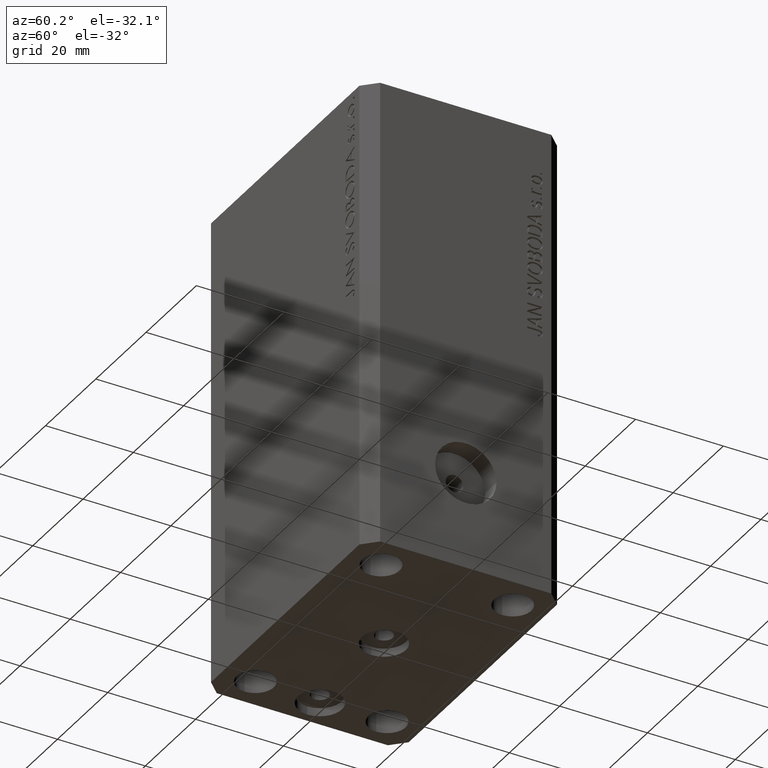
[diagram: clean part render]
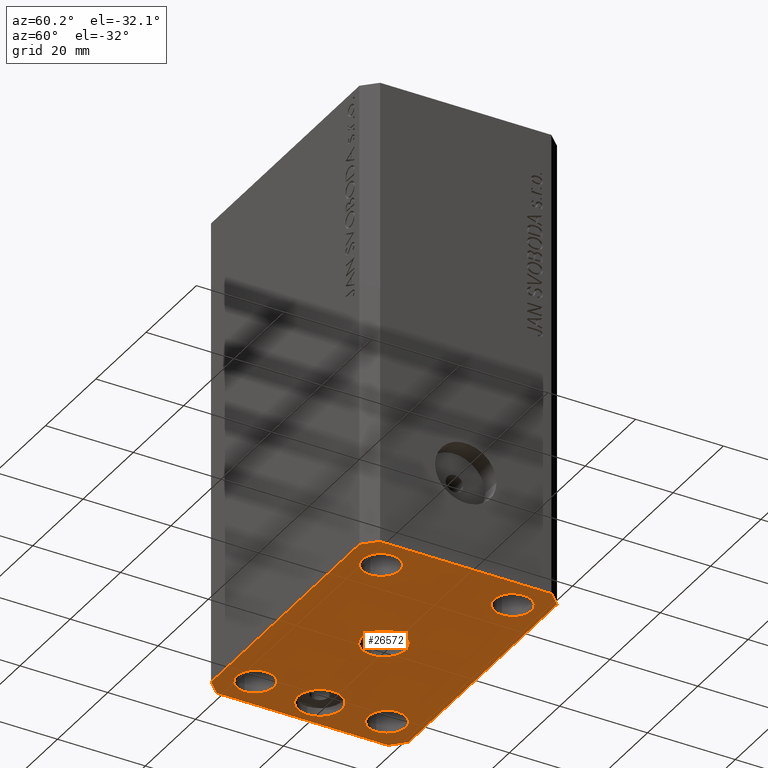
[diagram: same view with one face highlighted and labeled with its STEP entity id]
A machine part, auxiliary view. The second image highlights one B-rep face of the part: STEP entity #26572.
In plain terms, the highlighted planar face has unit normal (0, 0, 1).
Its self-contained STEP definition (entity closure, byte-faithful):
#320 = AXIS2_PLACEMENT_3D ( 'NONE', #12342, #1512, #32620 ) ;
#455 = EDGE_LOOP ( 'NONE', ( #32342, #13451 ) ) ;
#748 = CARTESIAN_POINT ( 'NONE',  ( 29.24999999995729283, 14.99999999999999289, -107.0000000000000000 ) ) ;
#968 = AXIS2_PLACEMENT_3D ( 'NONE', #21049, #3480, #17234 ) ;
#979 = CARTESIAN_POINT ( 'NONE',  ( 0.000000000000000000, 0.000000000000000000, -107.0000000000000000 ) ) ;
#1003 = VECTOR ( 'NONE', #17864, 1000.000000000000114 ) ;
#1058 = EDGE_CURVE ( 'NONE', #8676, #4973, #32289, .T. ) ;
#1157 = CIRCLE ( 'NONE', #16307, 4.250000000021375790 ) ;
#1512 = DIRECTION ( 'NONE',  ( -0.000000000000000000, -0.000000000000000000, -1.000000000000000000 ) ) ;
#1616 = LINE ( 'NONE', #39695, #43990 ) ;
#1772 = CARTESIAN_POINT ( 'NONE',  ( 0.000000000000000000, 0.000000000000000000, -107.0000000000000000 ) ) ;
#1879 = AXIS2_PLACEMENT_3D ( 'NONE', #42064, #28564, #11198 ) ;
#2253 = ORIENTED_EDGE ( 'NONE', *, *, #20533, .F. ) ;
#2432 = AXIS2_PLACEMENT_3D ( 'NONE', #5220, #12200, #29564 ) ;
#2832 = EDGE_LOOP ( 'NONE', ( #38827, #12743, #17853, #35721, #3666, #20588, #16295, #13806 ) ) ;
#3297 = EDGE_LOOP ( 'NONE', ( #16208, #14117 ) ) ;
#3480 = DIRECTION ( 'NONE',  ( 0.000000000000000000, 0.000000000000000000, -1.000000000000000000 ) ) ;
#3666 = ORIENTED_EDGE ( 'NONE', *, *, #12774, .F. ) ;
#4532 = EDGE_CURVE ( 'NONE', #4973, #8676, #16575, .T. ) ;
#4973 = VERTEX_POINT ( 'NONE', #24054 ) ;
#5220 = CARTESIAN_POINT ( 'NONE',  ( -25.00000000000000000, 14.99999999999999645, -107.0000000000000000 ) ) ;
#5301 = AXIS2_PLACEMENT_3D ( 'NONE', #26610, #15588, #29339 ) ;
#5334 = EDGE_CURVE ( 'NONE', #29648, #14518, #12257, .T. ) ;
#5394 = FACE_BOUND ( 'NONE', #40103, .T. ) ;
#5593 = LINE ( 'NONE', #18424, #28407 ) ;
#5619 = CARTESIAN_POINT ( 'NONE',  ( -30.49999999999665690, 0.000000000000000000, -107.0000000000000000 ) ) ;
#5694 = DIRECTION ( 'NONE',  ( 0.7071067811865483499, 0.7071067811865466846, 0.000000000000000000 ) ) ;
#6377 = CARTESIAN_POINT ( 'NONE',  ( -32.49999999999650413, -19.49999999999949907, -107.0000000000000000 ) ) ;
#7159 = CARTESIAN_POINT ( 'NONE',  ( 20.75000000002367884, -15.00000000000000355, -107.0000000000000000 ) ) ;
#7179 = EDGE_CURVE ( 'NONE', #34428, #20043, #21568, .T. ) ;
#7245 = VECTOR ( 'NONE', #31945, 1000.000000000000000 ) ;
#7411 = CARTESIAN_POINT ( 'NONE',  ( 32.49999999999702993, 19.49999999999945999, -107.0000000000000000 ) ) ;
#7596 = AXIS2_PLACEMENT_3D ( 'NONE', #1772, #25890, #8752 ) ;
#8247 = CIRCLE ( 'NONE', #320, 4.249999999957291053 ) ;
#8526 = FACE_BOUND ( 'NONE', #455, .T. ) ;
#8564 = ORIENTED_EDGE ( 'NONE', *, *, #23512, .F. ) ;
#8676 = VERTEX_POINT ( 'NONE', #40306 ) ;
#8752 = DIRECTION ( 'NONE',  ( 1.000000000000000000, 0.000000000000000000, -0.000000000000000000 ) ) ;
#8894 = CIRCLE ( 'NONE', #968, 4.999999999996659561 ) ;
#9445 = EDGE_CURVE ( 'NONE', #24136, #12285, #1616, .T. ) ;
#9511 = VECTOR ( 'NONE', #42660, 1000.000000000000000 ) ;
#9768 = DIRECTION ( 'NONE',  ( 1.000000000000000000, 1.176083712526788232E-16, 0.000000000000000000 ) ) ;
#10113 = VERTEX_POINT ( 'NONE', #16244 ) ;
#10233 = CIRCLE ( 'NONE', #19611, 4.999999999996659561 ) ;
#10339 = EDGE_LOOP ( 'NONE', ( #43702, #33589 ) ) ;
#11141 = DIRECTION ( 'NONE',  ( 0.7071067811865474617, -0.7071067811865474617, 0.000000000000000000 ) ) ;
#11198 = DIRECTION ( 'NONE',  ( -1.000000000000000000, 0.000000000000000000, 0.000000000000000000 ) ) ;
#11246 = CARTESIAN_POINT ( 'NONE',  ( -25.00000000000000000, 14.99999999999999645, -107.0000000000000000 ) ) ;
#11356 = CARTESIAN_POINT ( 'NONE',  ( 32.49999999999651124, -19.49999999999949196, -107.0000000000000000 ) ) ;
#11601 = CARTESIAN_POINT ( 'NONE',  ( -29.49999999999650413, 22.49999999999949907, -107.0000000000000000 ) ) ;
#11934 = VERTEX_POINT ( 'NONE', #748 ) ;
#12140 = FACE_BOUND ( 'NONE', #3297, .T. ) ;
#12200 = DIRECTION ( 'NONE',  ( -0.000000000000000000, -0.000000000000000000, -1.000000000000000000 ) ) ;
#12257 = CIRCLE ( 'NONE', #38841, 4.249999999976314058 ) ;
#12285 = VERTEX_POINT ( 'NONE', #16641 ) ;
#12342 = CARTESIAN_POINT ( 'NONE',  ( 25.00000000000000000, 14.99999999999999289, -107.0000000000000000 ) ) ;
#12656 = EDGE_CURVE ( 'NONE', #20043, #26534, #34572, .T. ) ;
#12743 = ORIENTED_EDGE ( 'NONE', *, *, #36323, .F. ) ;
#12774 = EDGE_CURVE ( 'NONE', #26534, #24136, #23511, .T. ) ;
#13125 = CARTESIAN_POINT ( 'NONE',  ( 29.49999999999650413, -22.49999999999949196, -107.0000000000000000 ) ) ;
#13451 = ORIENTED_EDGE ( 'NONE', *, *, #25745, .F. ) ;
#13806 = ORIENTED_EDGE ( 'NONE', *, *, #21308, .F. ) ;
#13936 = CIRCLE ( 'NONE', #2432, 4.250000000021375790 ) ;
#14117 = ORIENTED_EDGE ( 'NONE', *, *, #32532, .F. ) ;
#14210 = EDGE_LOOP ( 'NONE', ( #19436, #23814 ) ) ;
#14518 = VERTEX_POINT ( 'NONE', #43049 ) ;
#14554 = ORIENTED_EDGE ( 'NONE', *, *, #5334, .F. ) ;
#14747 = DIRECTION ( 'NONE',  ( -1.000000000000000000, 0.000000000000000000, 0.000000000000000000 ) ) ;
#14826 = CIRCLE ( 'NONE', #40001, 5.000000000000000000 ) ;
#15119 = AXIS2_PLACEMENT_3D ( 'NONE', #29654, #16358, #29876 ) ;
#15588 = DIRECTION ( 'NONE',  ( -0.000000000000000000, -0.000000000000000000, -1.000000000000000000 ) ) ;
#16139 = VERTEX_POINT ( 'NONE', #5619 ) ;
#16208 = ORIENTED_EDGE ( 'NONE', *, *, #44382, .F. ) ;
#16244 = CARTESIAN_POINT ( 'NONE',  ( -20.50000000000333955, 6.123233995732674066E-16, -107.0000000000000000 ) ) ;
#16295 = ORIENTED_EDGE ( 'NONE', *, *, #7179, .F. ) ;
#16307 = AXIS2_PLACEMENT_3D ( 'NONE', #11246, #41659, #22054 ) ;
#16358 = DIRECTION ( 'NONE',  ( -0.000000000000000000, -0.000000000000000000, -1.000000000000000000 ) ) ;
#16575 = CIRCLE ( 'NONE', #15119, 4.250000000040370374 ) ;
#16632 = VECTOR ( 'NONE', #24323, 1000.000000000000000 ) ;
#16641 = CARTESIAN_POINT ( 'NONE',  ( 32.49999999999651124, -19.49999999999949196, -107.0000000000000000 ) ) ;
#16715 = DIRECTION ( 'NONE',  ( 0.000000000000000000, 0.000000000000000000, -1.000000000000000000 ) ) ;
#17234 = DIRECTION ( 'NONE',  ( -1.000000000000000000, 0.000000000000000000, 0.000000000000000000 ) ) ;
#17264 = VERTEX_POINT ( 'NONE', #33831 ) ;
#17630 = DIRECTION ( 'NONE',  ( -0.000000000000000000, -0.000000000000000000, -1.000000000000000000 ) ) ;
#17853 = ORIENTED_EDGE ( 'NONE', *, *, #39646, .F. ) ;
#17864 = DIRECTION ( 'NONE',  ( -0.7071067811865474617, -0.7071067811865474617, 0.000000000000000000 ) ) ;
#18424 = CARTESIAN_POINT ( 'NONE',  ( 29.49999999999707967, 22.49999999999952038, -107.0000000000000000 ) ) ;
#18932 = CARTESIAN_POINT ( 'NONE',  ( -29.49999999999650413, 22.49999999999949907, -107.0000000000000000 ) ) ;
#19435 = EDGE_CURVE ( 'NONE', #14518, #29648, #34775, .T. ) ;
#19436 = ORIENTED_EDGE ( 'NONE', *, *, #19955, .F. ) ;
#19611 = AXIS2_PLACEMENT_3D ( 'NONE', #27282, #16715, #30459 ) ;
#19645 = VERTEX_POINT ( 'NONE', #33037 ) ;
#19955 = EDGE_CURVE ( 'NONE', #16139, #10113, #8894, .T. ) ;
#20043 = VERTEX_POINT ( 'NONE', #6377 ) ;
#20348 = CARTESIAN_POINT ( 'NONE',  ( 24.99999999999999289, -15.00000000000000355, -107.0000000000000000 ) ) ;
#20533 = EDGE_CURVE ( 'NONE', #19645, #11934, #33393, .T. ) ;
#20588 = ORIENTED_EDGE ( 'NONE', *, *, #12656, .F. ) ;
#21049 = CARTESIAN_POINT ( 'NONE',  ( -25.50000000000000000, 0.000000000000000000, -107.0000000000000000 ) ) ;
#21308 = EDGE_CURVE ( 'NONE', #28744, #34428, #39880, .T. ) ;
#21420 = VERTEX_POINT ( 'NONE', #40320 ) ;
#21464 = AXIS2_PLACEMENT_3D ( 'NONE', #29919, #33516, #43854 ) ;
#21568 = LINE ( 'NONE', #34874, #7245 ) ;
#21588 = EDGE_CURVE ( 'NONE', #17264, #28744, #5593, .T. ) ;
#21762 = VECTOR ( 'NONE', #11141, 1000.000000000000114 ) ;
#22054 = DIRECTION ( 'NONE',  ( 1.000000000000000000, 0.000000000000000000, 0.000000000000000000 ) ) ;
#23063 = CARTESIAN_POINT ( 'NONE',  ( -29.49999999999650413, -22.49999999999949907, -107.0000000000000000 ) ) ;
#23209 = VERTEX_POINT ( 'NONE', #43498 ) ;
#23452 = CARTESIAN_POINT ( 'NONE',  ( 25.00000000000000000, 14.99999999999999289, -107.0000000000000000 ) ) ;
#23511 = LINE ( 'NONE', #23063, #34025 ) ;
#23512 = EDGE_CURVE ( 'NONE', #11934, #19645, #8247, .T. ) ;
#23814 = ORIENTED_EDGE ( 'NONE', *, *, #40898, .F. ) ;
#24054 = CARTESIAN_POINT ( 'NONE',  ( -29.25000000004036593, -15.00000000000000355, -107.0000000000000000 ) ) ;
#24108 = LINE ( 'NONE', #40792, #16632 ) ;
#24136 = VERTEX_POINT ( 'NONE', #13125 ) ;
#24249 = EDGE_LOOP ( 'NONE', ( #41818, #14554 ) ) ;
#24323 = DIRECTION ( 'NONE',  ( -0.7071067811865344721, 0.7071067811865606734, 0.000000000000000000 ) ) ;
#25382 = CARTESIAN_POINT ( 'NONE',  ( -20.74999999997862687, 14.99999999999999645, -107.0000000000000000 ) ) ;
#25745 = EDGE_CURVE ( 'NONE', #32725, #23209, #14826, .T. ) ;
#25890 = DIRECTION ( 'NONE',  ( 0.000000000000000000, 0.000000000000000000, 1.000000000000000000 ) ) ;
#26380 = CIRCLE ( 'NONE', #1879, 5.000000000000000000 ) ;
#26405 = VERTEX_POINT ( 'NONE', #7411 ) ;
#26534 = VERTEX_POINT ( 'NONE', #43000 ) ;
#26572 = ADVANCED_FACE ( 'NONE', ( #8526, #39619, #35797, #29060, #5394, #12140, #42776 ), #32648, .F. ) ;
#26610 = CARTESIAN_POINT ( 'NONE',  ( 24.99999999999999289, -15.00000000000000355, -107.0000000000000000 ) ) ;
#26843 = EDGE_CURVE ( 'NONE', #23209, #32725, #26380, .T. ) ;
#27282 = CARTESIAN_POINT ( 'NONE',  ( -25.50000000000000000, 0.000000000000000000, -107.0000000000000000 ) ) ;
#27325 = DIRECTION ( 'NONE',  ( 1.000000000000000000, 0.000000000000000000, 0.000000000000000000 ) ) ;
#27795 = CARTESIAN_POINT ( 'NONE',  ( -32.49999999999650413, 19.49999999999949907, -107.0000000000000000 ) ) ;
#28407 = VECTOR ( 'NONE', #32183, 1000.000000000000000 ) ;
#28564 = DIRECTION ( 'NONE',  ( 0.000000000000000000, 0.000000000000000000, -1.000000000000000000 ) ) ;
#28744 = VERTEX_POINT ( 'NONE', #11601 ) ;
#29060 = FACE_BOUND ( 'NONE', #24249, .T. ) ;
#29339 = DIRECTION ( 'NONE',  ( 1.000000000000000000, 0.000000000000000000, 0.000000000000000000 ) ) ;
#29564 = DIRECTION ( 'NONE',  ( 1.000000000000000000, 0.000000000000000000, 0.000000000000000000 ) ) ;
#29648 = VERTEX_POINT ( 'NONE', #7159 ) ;
#29654 = CARTESIAN_POINT ( 'NONE',  ( -24.99999999999999289, -15.00000000000000355, -107.0000000000000000 ) ) ;
#29876 = DIRECTION ( 'NONE',  ( 1.000000000000000000, 0.000000000000000000, 0.000000000000000000 ) ) ;
#29919 = CARTESIAN_POINT ( 'NONE',  ( -24.99999999999999289, -15.00000000000000355, -107.0000000000000000 ) ) ;
#30226 = DIRECTION ( 'NONE',  ( 1.000000000000000000, 0.000000000000000000, 0.000000000000000000 ) ) ;
#30459 = DIRECTION ( 'NONE',  ( -1.000000000000000000, 0.000000000000000000, 0.000000000000000000 ) ) ;
#30819 = CARTESIAN_POINT ( 'NONE',  ( 5.000000000000000000, 6.123233995736765296E-16, -107.0000000000000000 ) ) ;
#31421 = CARTESIAN_POINT ( 'NONE',  ( -32.49999999999650413, -19.49999999999949907, -107.0000000000000000 ) ) ;
#31558 = VERTEX_POINT ( 'NONE', #25382 ) ;
#31945 = DIRECTION ( 'NONE',  ( 0.000000000000000000, -1.000000000000000000, 0.000000000000000000 ) ) ;
#32183 = DIRECTION ( 'NONE',  ( -1.000000000000000000, -3.528251137580330676E-16, 0.000000000000000000 ) ) ;
#32289 = CIRCLE ( 'NONE', #21464, 4.250000000040370374 ) ;
#32342 = ORIENTED_EDGE ( 'NONE', *, *, #26843, .F. ) ;
#32527 = LINE ( 'NONE', #11356, #9511 ) ;
#32532 = EDGE_CURVE ( 'NONE', #21420, #31558, #1157, .T. ) ;
#32620 = DIRECTION ( 'NONE',  ( 1.000000000000000000, 0.000000000000000000, 0.000000000000000000 ) ) ;
#32648 = PLANE ( 'NONE',  #7596 ) ;
#32725 = VERTEX_POINT ( 'NONE', #30819 ) ;
#33037 = CARTESIAN_POINT ( 'NONE',  ( 20.75000000004271072, 14.99999999999999289, -107.0000000000000000 ) ) ;
#33393 = CIRCLE ( 'NONE', #44186, 4.249999999957291053 ) ;
#33516 = DIRECTION ( 'NONE',  ( -0.000000000000000000, -0.000000000000000000, -1.000000000000000000 ) ) ;
#33589 = ORIENTED_EDGE ( 'NONE', *, *, #4532, .F. ) ;
#33605 = DIRECTION ( 'NONE',  ( -0.000000000000000000, -0.000000000000000000, -1.000000000000000000 ) ) ;
#33831 = CARTESIAN_POINT ( 'NONE',  ( 29.49999999999707967, 22.49999999999952038, -107.0000000000000000 ) ) ;
#34025 = VECTOR ( 'NONE', #9768, 1000.000000000000000 ) ;
#34428 = VERTEX_POINT ( 'NONE', #27795 ) ;
#34572 = LINE ( 'NONE', #31421, #21762 ) ;
#34775 = CIRCLE ( 'NONE', #5301, 4.249999999976314058 ) ;
#34874 = CARTESIAN_POINT ( 'NONE',  ( -32.49999999999650413, 19.49999999999949907, -107.0000000000000000 ) ) ;
#35721 = ORIENTED_EDGE ( 'NONE', *, *, #9445, .F. ) ;
#35797 = FACE_BOUND ( 'NONE', #10339, .T. ) ;
#36323 = EDGE_CURVE ( 'NONE', #26405, #17264, #24108, .T. ) ;
#38609 = DIRECTION ( 'NONE',  ( 0.000000000000000000, 0.000000000000000000, -1.000000000000000000 ) ) ;
#38827 = ORIENTED_EDGE ( 'NONE', *, *, #21588, .F. ) ;
#38841 = AXIS2_PLACEMENT_3D ( 'NONE', #20348, #17630, #27325 ) ;
#39619 = FACE_BOUND ( 'NONE', #14210, .T. ) ;
#39646 = EDGE_CURVE ( 'NONE', #12285, #26405, #32527, .T. ) ;
#39695 = CARTESIAN_POINT ( 'NONE',  ( 29.49999999999650413, -22.49999999999949196, -107.0000000000000000 ) ) ;
#39880 = LINE ( 'NONE', #18932, #1003 ) ;
#40001 = AXIS2_PLACEMENT_3D ( 'NONE', #979, #38609, #14747 ) ;
#40103 = EDGE_LOOP ( 'NONE', ( #8564, #2253 ) ) ;
#40306 = CARTESIAN_POINT ( 'NONE',  ( -20.74999999995962341, -15.00000000000000355, -107.0000000000000000 ) ) ;
#40320 = CARTESIAN_POINT ( 'NONE',  ( -29.25000000002137668, 14.99999999999999645, -107.0000000000000000 ) ) ;
#40792 = CARTESIAN_POINT ( 'NONE',  ( 32.49999999999702993, 19.49999999999945999, -107.0000000000000000 ) ) ;
#40898 = EDGE_CURVE ( 'NONE', #10113, #16139, #10233, .T. ) ;
#41659 = DIRECTION ( 'NONE',  ( -0.000000000000000000, -0.000000000000000000, -1.000000000000000000 ) ) ;
#41818 = ORIENTED_EDGE ( 'NONE', *, *, #19435, .F. ) ;
#42064 = CARTESIAN_POINT ( 'NONE',  ( 0.000000000000000000, 0.000000000000000000, -107.0000000000000000 ) ) ;
#42660 = DIRECTION ( 'NONE',  ( 1.334402673828349134E-14, 1.000000000000000000, 0.000000000000000000 ) ) ;
#42776 = FACE_OUTER_BOUND ( 'NONE', #2832, .T. ) ;
#43000 = CARTESIAN_POINT ( 'NONE',  ( -29.49999999999650413, -22.49999999999949907, -107.0000000000000000 ) ) ;
#43049 = CARTESIAN_POINT ( 'NONE',  ( 29.24999999997631051, -15.00000000000000355, -107.0000000000000000 ) ) ;
#43498 = CARTESIAN_POINT ( 'NONE',  ( -5.000000000000000000, 0.000000000000000000, -107.0000000000000000 ) ) ;
#43702 = ORIENTED_EDGE ( 'NONE', *, *, #1058, .F. ) ;
#43854 = DIRECTION ( 'NONE',  ( 1.000000000000000000, 0.000000000000000000, 0.000000000000000000 ) ) ;
#43990 = VECTOR ( 'NONE', #5694, 1000.000000000000000 ) ;
#44186 = AXIS2_PLACEMENT_3D ( 'NONE', #23452, #33605, #30226 ) ;
#44382 = EDGE_CURVE ( 'NONE', #31558, #21420, #13936, .T. ) ;